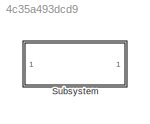
MODEL slx_4c35a493dcd9
KIND model
CONFIG AbsTol = auto
CONFIG EnableMultiTasking = off
CONFIG FixedStep = auto
CONFIG MaxStep = auto
CONFIG MinStep = auto
CONFIG RelTol = 1e-3
CONFIG SampleTimeConstraint = Unconstrained
CONFIG SolverName = VariableStepAuto
CONFIG StartTime = 0.0
CONFIG StopTime = 10.0
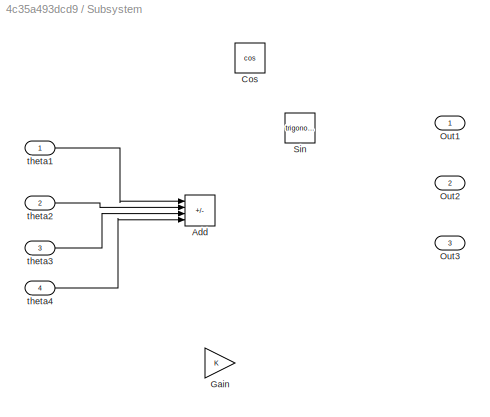
BLOCK [SubSystem] Subsystem
BLOCK [Sum] Subsystem/Add
  IconShape = rectangular
  Inputs = +-+-
BLOCK [Trigonometry] Subsystem/Cos
  Operator = cos
BLOCK [Gain] Subsystem/Gain
BLOCK [Outport] Subsystem/Out1
BLOCK [Outport] Subsystem/Out2
  Port = 2
BLOCK [Outport] Subsystem/Out3
  Port = 3
BLOCK [Trigonometry] Subsystem/Sin
BLOCK [Inport] Subsystem/theta1
BLOCK [Inport] Subsystem/theta2
  Port = 2
BLOCK [Inport] Subsystem/theta3
  Port = 3
BLOCK [Inport] Subsystem/theta4
  Port = 4
LINE Subsystem/theta1:1 -> Subsystem/Add:1
LINE Subsystem/theta2:1 -> Subsystem/Add:2
LINE Subsystem/theta3:1 -> Subsystem/Add:3
LINE Subsystem/theta4:1 -> Subsystem/Add:4
